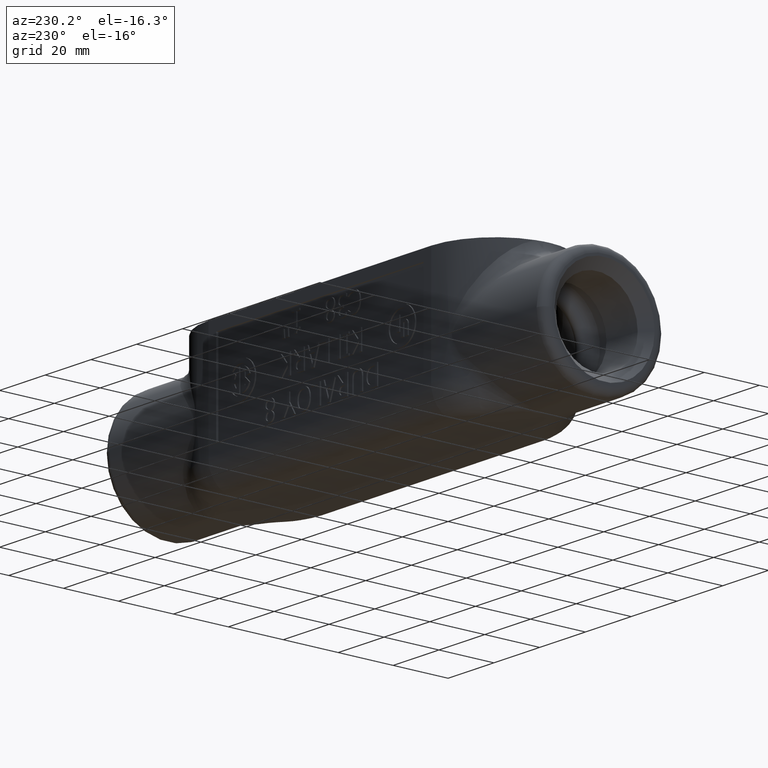
[diagram: clean part render]
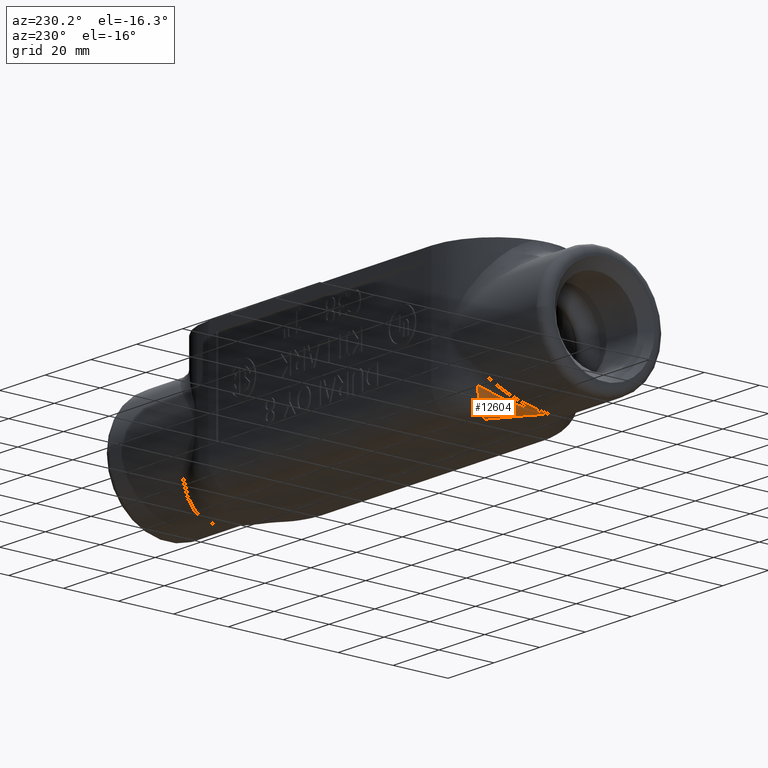
[diagram: same view with one face highlighted and labeled with its STEP entity id]
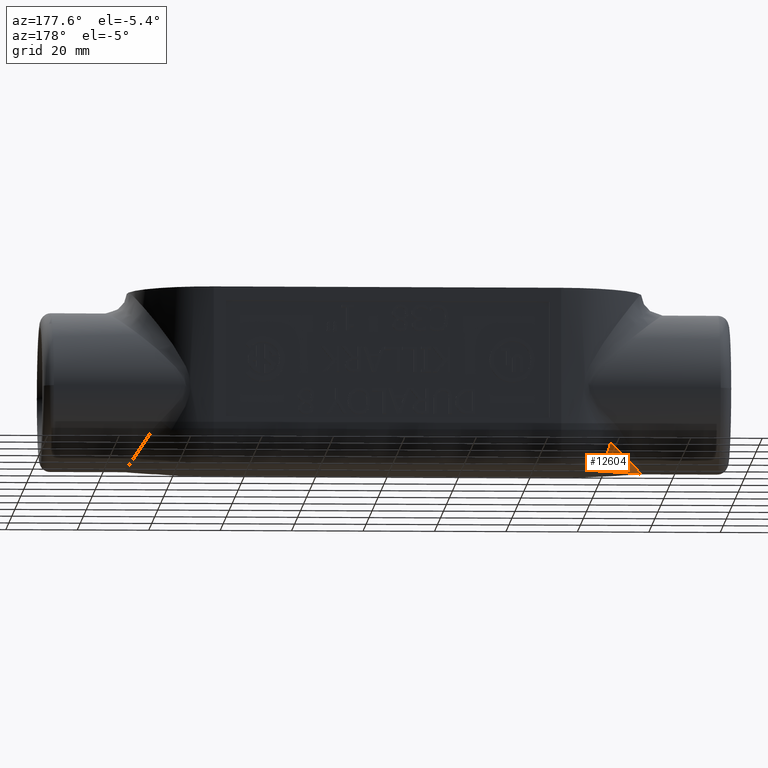
[diagram: same view with one face highlighted and labeled with its STEP entity id]
A machine part, auxiliary view. The second image highlights one B-rep face of the part: STEP entity #12604.
A second angle (auxiliary view) of the same face is appended — the face is thin or edge-on in the first view.
In plain terms, the highlighted face is a freeform B-spline surface patch.
Its self-contained STEP definition (entity closure, byte-faithful):
#2889=B_SPLINE_CURVE_WITH_KNOTS('',3,(#16309,#16310,#16311,#16312,#16313,
#16314,#16315,#16316,#16317,#16318,#16319),.UNSPECIFIED.,.F.,.F.,(4,1,1,
1,1,1,2,4),(0.,0.272248890081659,0.544497780163318,1.08899556032664,1.63349334048995,
2.17799112065327,2.72248890081659,2.73523070748787),.UNSPECIFIED.);
#2915=B_SPLINE_CURVE_WITH_KNOTS('',3,(#17374,#17375,#17376,#17377,#17378,
#17379,#17380,#17381,#17382,#17383,#17384,#17385),.UNSPECIFIED.,.F.,.F.,
(4,1,1,1,1,1,1,2,4),(6.62488520410788,6.99490589073689,7.36492657736589,
7.54993692068039,7.7349472639949,7.9199576073094,8.1049679506239,8.47498863725291,
8.47657140870709),.UNSPECIFIED.);
#3359=B_SPLINE_SURFACE_WITH_KNOTS('',3,3,((#17302,#17303,#17304,#17305,
#17306,#17307,#17308,#17309,#17310,#17311,#17312,#17313),(#17314,#17315,
#17316,#17317,#17318,#17319,#17320,#17321,#17322,#17323,#17324,#17325),
(#17326,#17327,#17328,#17329,#17330,#17331,#17332,#17333,#17334,#17335,
#17336,#17337),(#17338,#17339,#17340,#17341,#17342,#17343,#17344,#17345,
#17346,#17347,#17348,#17349),(#17350,#17351,#17352,#17353,#17354,#17355,
#17356,#17357,#17358,#17359,#17360,#17361),(#17362,#17363,#17364,#17365,
#17366,#17367,#17368,#17369,#17370,#17371,#17372,#17373)),.UNSPECIFIED.,
 .F.,.F.,.F.,(4,1,1,4),(4,2,1,1,1,1,1,1,4),(0.148982202324127,0.513704115613787,
0.756852057806893,1.),(-8.47657140870709,-8.47498863725291,-8.1049679506239,
-7.9199576073094,-7.7349472639949,-7.54993692068039,-7.36492657736589,-6.99490589073689,
-6.62488520410788),.UNSPECIFIED.);
#4370=FACE_OUTER_BOUND('',#5058,.T.);
#5058=EDGE_LOOP('',(#9015,#9016,#9017));
#5836=CIRCLE('',#13322,0.39);
#5936=VERTEX_POINT('',#16306);
#5937=VERTEX_POINT('',#16308);
#5967=VERTEX_POINT('',#17296);
#7138=EDGE_CURVE('',#5936,#5937,#2889,.T.);
#7186=EDGE_CURVE('',#5967,#5936,#5836,.T.);
#7189=EDGE_CURVE('',#5967,#5937,#2915,.T.);
#9015=ORIENTED_EDGE('',*,*,#7138,.F.);
#9016=ORIENTED_EDGE('',*,*,#7186,.F.);
#9017=ORIENTED_EDGE('',*,*,#7189,.T.);
#12604=ADVANCED_FACE('',(#4370),#3359,.F.);
#13322=AXIS2_PLACEMENT_3D('',#17298,#13935,#13936);
#13935=DIRECTION('center_axis',(0.791614845914484,0.611020405328486,0.));
#13936=DIRECTION('ref_axis',(0.,0.,-1.));
#16306=CARTESIAN_POINT('',(-2.46775345603076,0.716126397921599,-0.703373999078766));
#16308=CARTESIAN_POINT('',(-2.835,0.,-0.985));
#16309=CARTESIAN_POINT('Ctrl Pts',(-2.46775345603076,0.716126397921599,
-0.703373999078766));
#16310=CARTESIAN_POINT('Ctrl Pts',(-2.48806165962061,0.694373092670042,
-0.720006999172213));
#16311=CARTESIAN_POINT('Ctrl Pts',(-2.52593087382926,0.653507618680087,
-0.752156276666264));
#16312=CARTESIAN_POINT('Ctrl Pts',(-2.59626604900727,0.571383105408682,
-0.812076738429833));
#16313=CARTESIAN_POINT('Ctrl Pts',(-2.67371732204293,0.464925049001472,
-0.877122462563965));
#16314=CARTESIAN_POINT('Ctrl Pts',(-2.74959437111952,0.324196234929836,
-0.937424564078764));
#16315=CARTESIAN_POINT('Ctrl Pts',(-2.80492354910852,0.171278082639516,
-0.975870144612762));
#16316=CARTESIAN_POINT('Ctrl Pts',(-2.82718578783235,0.0613466096456965,
-0.984795535222692));
#16317=CARTESIAN_POINT('Ctrl Pts',(-2.83466470255318,0.00268635843979853,
-0.984997715833547));
#16318=CARTESIAN_POINT('Ctrl Pts',(-2.8348333714958,0.00134393623598415,
-0.985));
#16319=CARTESIAN_POINT('Ctrl Pts',(-2.835,-3.27821759239712E-17,-0.985));
#17296=CARTESIAN_POINT('',(-2.2388408148241,0.419555868334676,-0.985));
#17298=CARTESIAN_POINT('Origin',(-2.2388408148241,0.419555868334676,-0.595));
#17302=CARTESIAN_POINT('Ctrl Pts',(-2.835,-3.27821759239712E-17,-0.985));
#17303=CARTESIAN_POINT('Ctrl Pts',(-2.83497934021844,0.000260468634007413,
-0.985));
#17304=CARTESIAN_POINT('Ctrl Pts',(-2.83495840248987,0.000521154715186148,
-0.984999765198584));
#17305=CARTESIAN_POINT('Ctrl Pts',(-2.83010569619985,0.061671485721897,
-0.985000678400973));
#17306=CARTESIAN_POINT('Ctrl Pts',(-2.81233913163452,0.159993542266447,
-0.976312185506178));
#17307=CARTESIAN_POINT('Ctrl Pts',(-2.7682679503338,0.284352992045529,-0.945910005265447));
#17308=CARTESIAN_POINT('Ctrl Pts',(-2.72851379612384,0.369915671575608,
-0.916345051952598));
#17309=CARTESIAN_POINT('Ctrl Pts',(-2.68463703153936,0.446943233641687,
-0.881950196079817));
#17310=CARTESIAN_POINT('Ctrl Pts',(-2.62379949951335,0.538525950736158,
-0.832015006088173));
#17311=CARTESIAN_POINT('Ctrl Pts',(-2.54783040751847,0.634110123584201,
-0.76510941500452));
#17312=CARTESIAN_POINT('Ctrl Pts',(-2.49427322434756,0.693797877565806,
-0.711448948182848));
#17313=CARTESIAN_POINT('Ctrl Pts',(-2.47064322308947,0.719870270442001,
-0.685437289926743));
#17314=CARTESIAN_POINT('Ctrl Pts',(-2.835,-3.27821759239712E-17,-0.985));
#17315=CARTESIAN_POINT('Ctrl Pts',(-2.83496138767348,0.000246240207499764,
-0.984998209481521));
#17316=CARTESIAN_POINT('Ctrl Pts',(-2.83492573840258,0.000490034636895581,
-0.985001509145495));
#17317=CARTESIAN_POINT('Ctrl Pts',(-2.82608441584549,0.0581166675163254,
-0.984958744693615));
#17318=CARTESIAN_POINT('Ctrl Pts',(-2.80320659397964,0.149212687814368,
-0.978828614703026));
#17319=CARTESIAN_POINT('Ctrl Pts',(-2.75511674789903,0.265212924833236,
-0.956912396003452));
#17320=CARTESIAN_POINT('Ctrl Pts',(-2.71347757608491,0.346164848427078,
-0.935409052011203));
#17321=CARTESIAN_POINT('Ctrl Pts',(-2.66861285059785,0.420561032020701,
-0.910082062802925));
#17322=CARTESIAN_POINT('Ctrl Pts',(-2.60741342404707,0.511281862455911,
-0.872790437525534));
#17323=CARTESIAN_POINT('Ctrl Pts',(-2.53256310915387,0.610394839032713,
-0.821638125224039));
#17324=CARTESIAN_POINT('Ctrl Pts',(-2.48172768471674,0.676502435533989,
-0.778995718458952));
#17325=CARTESIAN_POINT('Ctrl Pts',(-2.46009051965067,0.706198588393676,
-0.757884674144872));
#17326=CARTESIAN_POINT('Ctrl Pts',(-2.835,-3.27821759239712E-17,-0.985));
#17327=CARTESIAN_POINT('Ctrl Pts',(-2.83493528708166,0.000219383529101764,
-0.984999741165294));
#17328=CARTESIAN_POINT('Ctrl Pts',(-2.83486772583501,0.000441122757710436,
-0.98500016653734));
#17329=CARTESIAN_POINT('Ctrl Pts',(-2.81946850760634,0.0521003989428245,
-0.984992775690913));
#17330=CARTESIAN_POINT('Ctrl Pts',(-2.78793825824153,0.131302841362455,
-0.98206932077531));
#17331=CARTESIAN_POINT('Ctrl Pts',(-2.73224608988246,0.231929335954591,
-0.971551053366833));
#17332=CARTESIAN_POINT('Ctrl Pts',(-2.68626018568162,0.303201687424945,
-0.96111750666899));
#17333=CARTESIAN_POINT('Ctrl Pts',(-2.63805296455049,0.370254933993369,
-0.948680354708951));
#17334=CARTESIAN_POINT('Ctrl Pts',(-2.57328019980897,0.454516845169377,
-0.930100719121134));
#17335=CARTESIAN_POINT('Ctrl Pts',(-2.49514260677319,0.55170730463159,-0.903995082882854));
#17336=CARTESIAN_POINT('Ctrl Pts',(-2.4427630989381,0.622135854713708,-0.881359852381735));
#17337=CARTESIAN_POINT('Ctrl Pts',(-2.42075524336347,0.655237297403158,
-0.869897346313378));
#17338=CARTESIAN_POINT('Ctrl Pts',(-2.835,-3.27821759239711E-17,-0.985));
#17339=CARTESIAN_POINT('Ctrl Pts',(-2.83489434222979,0.000185474874933364,
-0.984998430896051));
#17340=CARTESIAN_POINT('Ctrl Pts',(-2.83479061382156,0.000369191742052927,
-0.985001453444206));
#17341=CARTESIAN_POINT('Ctrl Pts',(-2.81011018599976,0.0437787717102858,
-0.984964654345471));
#17342=CARTESIAN_POINT('Ctrl Pts',(-2.7665594416886,0.106260447705336,-0.984541425452511));
#17343=CARTESIAN_POINT('Ctrl Pts',(-2.69889369644156,0.183502545554962,
-0.982831893923411));
#17344=CARTESIAN_POINT('Ctrl Pts',(-2.6451617904008,0.238397472362427,-0.981143788541831));
#17345=CARTESIAN_POINT('Ctrl Pts',(-2.58980516722358,0.29087987613988,-0.979106833881014));
#17346=CARTESIAN_POINT('Ctrl Pts',(-2.515533464676,0.358516001862374,-0.976034126904359));
#17347=CARTESIAN_POINT('Ctrl Pts',(-2.42456610657424,0.44033596851773,-0.971653094668101));
#17348=CARTESIAN_POINT('Ctrl Pts',(-2.35925552127476,0.505019870617077,
-0.967750912243307));
#17349=CARTESIAN_POINT('Ctrl Pts',(-2.32979295009614,0.537390002712338,
-0.965754321143568));
#17350=CARTESIAN_POINT('Ctrl Pts',(-2.835,-3.27821759239712E-17,-0.985));
#17351=CARTESIAN_POINT('Ctrl Pts',(-2.83487307095323,0.00016429756377753,
-0.985));
#17352=CARTESIAN_POINT('Ctrl Pts',(-2.8347445635718,0.000329780284401679,
-0.985));
#17353=CARTESIAN_POINT('Ctrl Pts',(-2.80481021025527,0.0389719768159375,
-0.984999999999989));
#17354=CARTESIAN_POINT('Ctrl Pts',(-2.7543242189175,0.0919759581154457,
-0.985000000000001));
#17355=CARTESIAN_POINT('Ctrl Pts',(-2.67954297223692,0.155395131345807,
-0.984999999999997));
#17356=CARTESIAN_POINT('Ctrl Pts',(-2.62099036732686,0.200289136271127,
-0.984999999999999));
#17357=CARTESIAN_POINT('Ctrl Pts',(-2.56097457560622,0.243447114745626,
-0.984999999999999));
#17358=CARTESIAN_POINT('Ctrl Pts',(-2.48021564338455,0.299795106290736,
-0.984999999999999));
#17359=CARTESIAN_POINT('Ctrl Pts',(-2.37994549211441,0.369812588917387,
-0.985));
#17360=CARTESIAN_POINT('Ctrl Pts',(-2.30462076991624,0.42827940642229,-0.985));
#17361=CARTESIAN_POINT('Ctrl Pts',(-2.26917899607999,0.458860864486638,
-0.985));
#17362=CARTESIAN_POINT('Ctrl Pts',(-2.835,-3.27821759239712E-17,-0.985));
#17363=CARTESIAN_POINT('Ctrl Pts',(-2.83486132718379,0.000154642870058679,
-0.985));
#17364=CARTESIAN_POINT('Ctrl Pts',(-2.83472257313683,0.000309198248813822,
-0.985));
#17365=CARTESIAN_POINT('Ctrl Pts',(-2.80213554318697,0.0365949015891742,
-0.984999999999989));
#17366=CARTESIAN_POINT('Ctrl Pts',(-2.74821310357168,0.0848274755189404,
-0.985000000000001));
#17367=CARTESIAN_POINT('Ctrl Pts',(-2.66986266179731,0.141346536227053,
-0.984999999999997));
#17368=CARTESIAN_POINT('Ctrl Pts',(-2.60890290269776,0.181235813642141,
-0.984999999999999));
#17369=CARTESIAN_POINT('Ctrl Pts',(-2.54655597878087,0.219729121662143,
-0.984999999999999));
#17370=CARTESIAN_POINT('Ctrl Pts',(-2.46255114721168,0.270430451255702,
-0.984999999999999));
#17371=CARTESIAN_POINT('Ctrl Pts',(-2.35762614205042,0.334531583240119,
-0.985));
#17372=CARTESIAN_POINT('Ctrl Pts',(-2.27728095509063,0.389885239735729,
-0.985));
#17373=CARTESIAN_POINT('Ctrl Pts',(-2.2388408148241,0.419555868334676,-0.985));
#17374=CARTESIAN_POINT('Ctrl Pts',(-2.2388408148241,0.419555868334676,-0.985));
#17375=CARTESIAN_POINT('Ctrl Pts',(-2.27728095509063,0.389885239735729,
-0.985));
#17376=CARTESIAN_POINT('Ctrl Pts',(-2.35762614205042,0.334531583240119,
-0.985));
#17377=CARTESIAN_POINT('Ctrl Pts',(-2.46255114721168,0.270430451255702,
-0.984999999999999));
#17378=CARTESIAN_POINT('Ctrl Pts',(-2.54655597878087,0.219729121662143,
-0.984999999999999));
#17379=CARTESIAN_POINT('Ctrl Pts',(-2.60890290269776,0.181235813642141,
-0.984999999999999));
#17380=CARTESIAN_POINT('Ctrl Pts',(-2.66986266179731,0.141346536227053,
-0.984999999999997));
#17381=CARTESIAN_POINT('Ctrl Pts',(-2.74821310357168,0.0848274755189404,
-0.985000000000001));
#17382=CARTESIAN_POINT('Ctrl Pts',(-2.80213554318697,0.0365949015891742,
-0.984999999999989));
#17383=CARTESIAN_POINT('Ctrl Pts',(-2.83472257313683,0.000309198248813822,
-0.985));
#17384=CARTESIAN_POINT('Ctrl Pts',(-2.83486132718379,0.000154642870058679,
-0.985));
#17385=CARTESIAN_POINT('Ctrl Pts',(-2.835,-3.27821759239712E-17,-0.985));